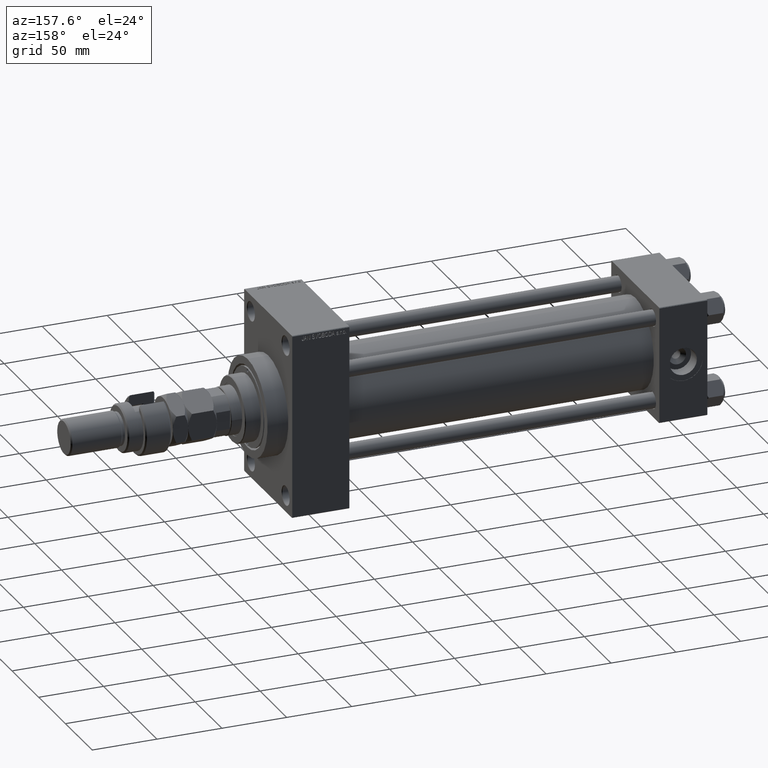
[diagram: clean part render]
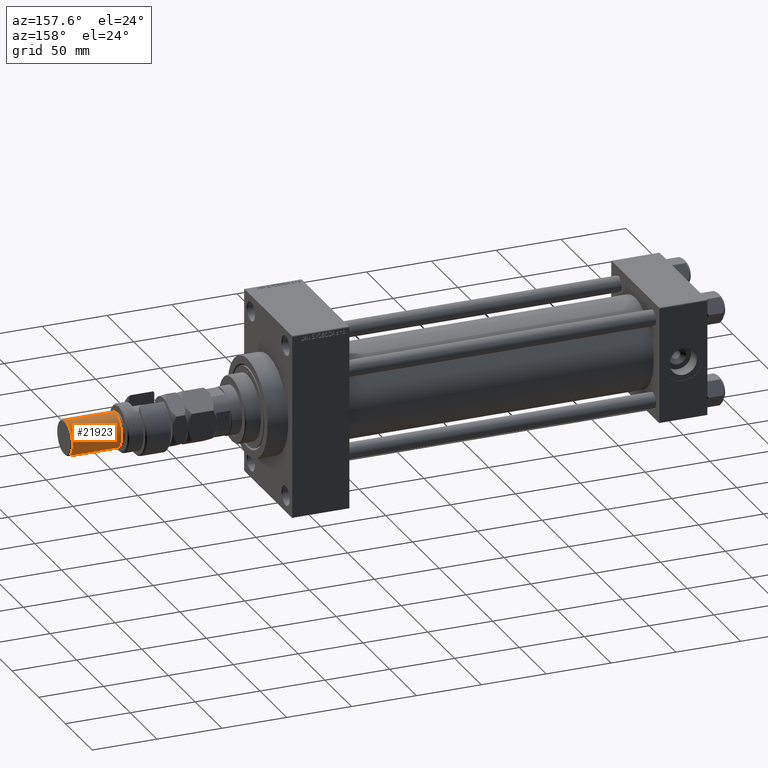
[diagram: same view with one face highlighted and labeled with its STEP entity id]
A machine part, auxiliary view. The second image highlights one B-rep face of the part: STEP entity #21923.
In plain terms, the highlighted cylindrical surface (edge-blend (fillet) strip) has radius 13.5 mm, axis along (-1, -0, 0).
Its self-contained STEP definition (entity closure, byte-faithful):
#525 = CARTESIAN_POINT ( 'NONE',  ( 0.000000000000000000, 0.000000000000000000, 73.00000000000001421 ) ) ;
#3096 = EDGE_LOOP ( 'NONE', ( #4262, #48371, #24375, #24791 ) ) ;
#4021 = DIRECTION ( 'NONE',  ( 1.000000000000000000, 0.000000000000000000, 0.000000000000000000 ) ) ;
#4262 = ORIENTED_EDGE ( 'NONE', *, *, #29974, .T. ) ;
#4912 = VECTOR ( 'NONE', #41072, 1000.000000000000000 ) ;
#5736 = CIRCLE ( 'NONE', #18742, 13.50000000000000000 ) ;
#6727 = LINE ( 'NONE', #21990, #4912 ) ;
#8576 = CIRCLE ( 'NONE', #29602, 13.50000000000000000 ) ;
#12159 = VERTEX_POINT ( 'NONE', #43775 ) ;
#15745 = CYLINDRICAL_SURFACE ( 'NONE', #42010, 13.50000000000000000 ) ;
#16020 = DIRECTION ( 'NONE',  ( 0.000000000000000000, 0.000000000000000000, -1.000000000000000000 ) ) ;
#17293 = CARTESIAN_POINT ( 'NONE',  ( -13.50000000000000000, 0.000000000000000000, 74.00000000000001421 ) ) ;
#18742 = AXIS2_PLACEMENT_3D ( 'NONE', #525, #16020, #31556 ) ;
#21923 = ADVANCED_FACE ( 'NONE', ( #42728 ), #15745, .T. ) ;
#21990 = CARTESIAN_POINT ( 'NONE',  ( 13.50000000000000000, 1.653273178848926867E-15, 74.00000000000001421 ) ) ;
#22508 = CARTESIAN_POINT ( 'NONE',  ( -13.50000000000000000, 0.000000000000000000, 73.00000000000001421 ) ) ;
#22898 = CARTESIAN_POINT ( 'NONE',  ( 0.000000000000000000, 0.000000000000000000, 74.00000000000001421 ) ) ;
#23041 = CARTESIAN_POINT ( 'NONE',  ( -13.50000000000000000, 0.000000000000000000, 34.99999999999999289 ) ) ;
#23605 = DIRECTION ( 'NONE',  ( -0.000000000000000000, -0.000000000000000000, 1.000000000000000000 ) ) ;
#23702 = VECTOR ( 'NONE', #41218, 1000.000000000000000 ) ;
#24375 = ORIENTED_EDGE ( 'NONE', *, *, #46958, .T. ) ;
#24791 = ORIENTED_EDGE ( 'NONE', *, *, #35406, .F. ) ;
#25569 = VERTEX_POINT ( 'NONE', #35220 ) ;
#26965 = DIRECTION ( 'NONE',  ( -1.000000000000000000, 0.000000000000000000, 0.000000000000000000 ) ) ;
#28764 = LINE ( 'NONE', #17293, #23702 ) ;
#29602 = AXIS2_PLACEMENT_3D ( 'NONE', #30982, #23605, #4021 ) ;
#29974 = EDGE_CURVE ( 'NONE', #39929, #12159, #5736, .T. ) ;
#30982 = CARTESIAN_POINT ( 'NONE',  ( 0.000000000000000000, 0.000000000000000000, 34.99999999999999289 ) ) ;
#31556 = DIRECTION ( 'NONE',  ( 1.000000000000000000, 0.000000000000000000, 0.000000000000000000 ) ) ;
#33342 = EDGE_CURVE ( 'NONE', #12159, #25569, #6727, .T. ) ;
#35220 = CARTESIAN_POINT ( 'NONE',  ( 13.50000000000000000, 1.653273178848926867E-15, 34.99999999999999289 ) ) ;
#35406 = EDGE_CURVE ( 'NONE', #39929, #37189, #28764, .T. ) ;
#37189 = VERTEX_POINT ( 'NONE', #23041 ) ;
#39929 = VERTEX_POINT ( 'NONE', #22508 ) ;
#41072 = DIRECTION ( 'NONE',  ( -0.000000000000000000, -0.000000000000000000, -1.000000000000000000 ) ) ;
#41218 = DIRECTION ( 'NONE',  ( -0.000000000000000000, -0.000000000000000000, -1.000000000000000000 ) ) ;
#42010 = AXIS2_PLACEMENT_3D ( 'NONE', #22898, #46299, #26965 ) ;
#42728 = FACE_OUTER_BOUND ( 'NONE', #3096, .T. ) ;
#43775 = CARTESIAN_POINT ( 'NONE',  ( 13.50000000000000000, 1.653273178848926867E-15, 73.00000000000001421 ) ) ;
#46299 = DIRECTION ( 'NONE',  ( -0.000000000000000000, -0.000000000000000000, -1.000000000000000000 ) ) ;
#46958 = EDGE_CURVE ( 'NONE', #25569, #37189, #8576, .T. ) ;
#48371 = ORIENTED_EDGE ( 'NONE', *, *, #33342, .T. ) ;